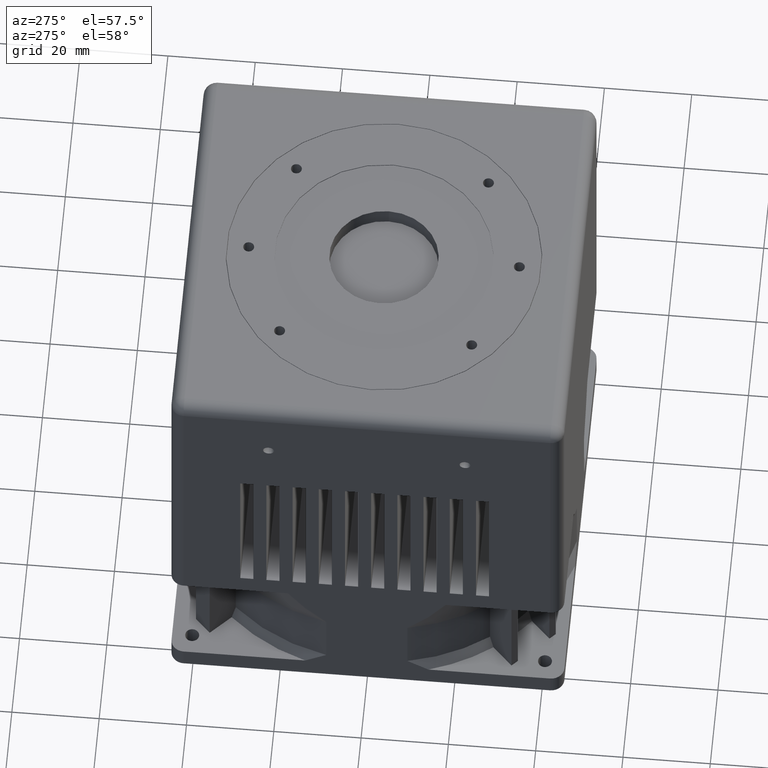
[diagram: clean part render]
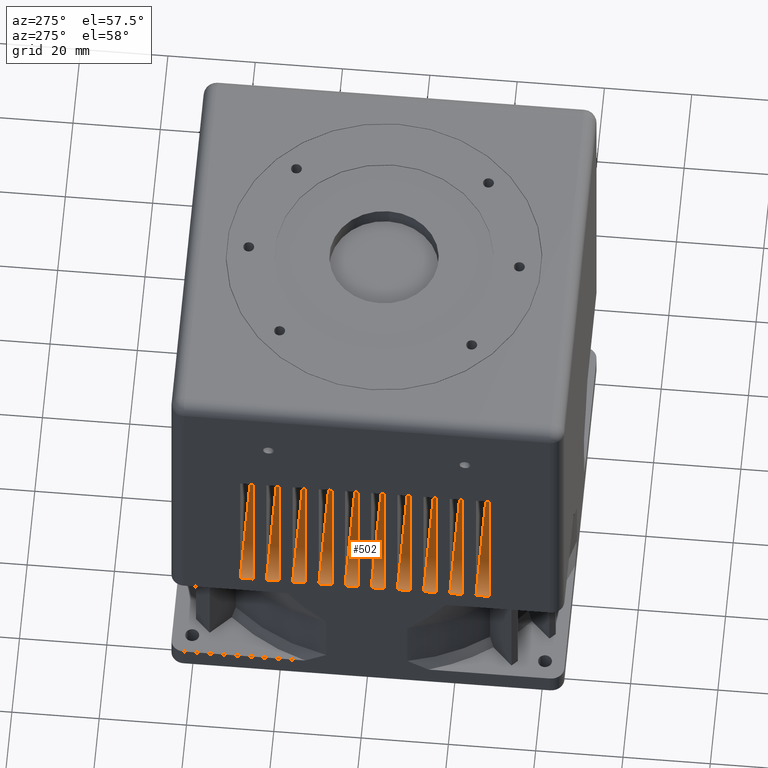
[diagram: same view with one face highlighted and labeled with its STEP entity id]
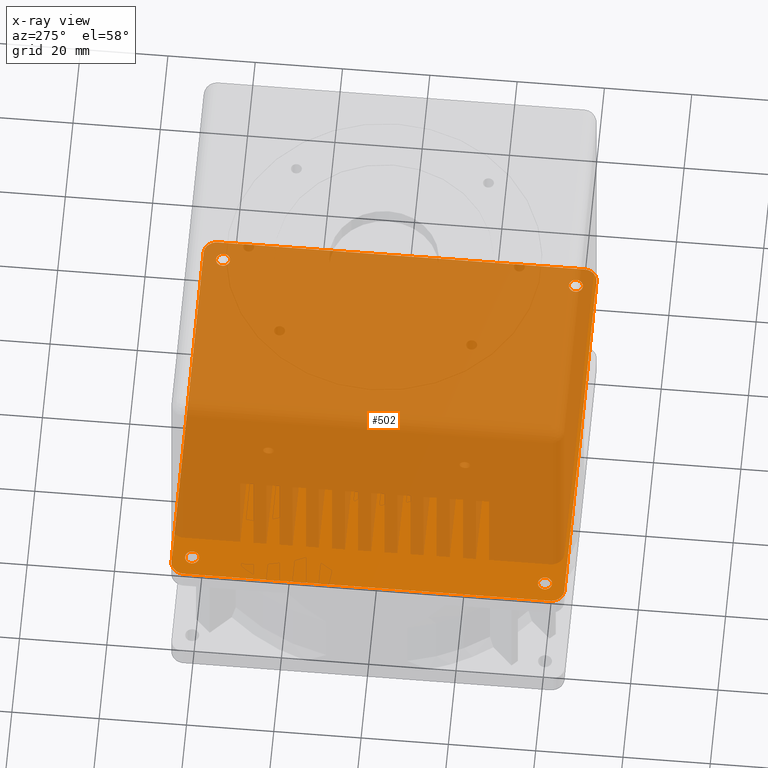
[diagram: x-ray of the same camera — body ghosted, the highlighted face saturated]
A machine part, auxiliary view. The second image highlights one B-rep face of the part: STEP entity #502.
The next image is the same camera in x-ray: the body ghosted, the highlighted face saturated — about 84% of this face is hidden behind the body in this view.
In plain terms, the highlighted planar face has unit normal (0, -0, 1).
Its self-contained STEP definition (entity closure, byte-faithful):
#18 = EDGE_CURVE ( 'NONE', #6832, #4979, #5490, .T. ) ;
#70 = VERTEX_POINT ( 'NONE', #5716 ) ;
#114 = CARTESIAN_POINT ( 'NONE',  ( 44.99999999999999289, -41.99999999999998579, 0.000000000000000000 ) ) ;
#277 = CIRCLE ( 'NONE', #3942, 1.600000000003196199 ) ;
#295 = CIRCLE ( 'NONE', #4749, 1.600000000001190692 ) ;
#493 = ORIENTED_EDGE ( 'NONE', *, *, #18, .T. ) ;
#502 = ADVANCED_FACE ( 'NONE', ( #6549, #4814, #4187, #6626, #3084 ), #7212, .T. ) ;
#556 = CIRCLE ( 'NONE', #4092, 3.000000000000002665 ) ;
#569 = AXIS2_PLACEMENT_3D ( 'NONE', #1505, #6275, #865 ) ;
#594 = VERTEX_POINT ( 'NONE', #6820 ) ;
#651 = DIRECTION ( 'NONE',  ( 0.000000000000000000, 0.000000000000000000, -1.000000000000000000 ) ) ;
#655 = DIRECTION ( 'NONE',  ( 0.000000000000000000, 0.000000000000000000, -1.000000000000000000 ) ) ;
#728 = CARTESIAN_POINT ( 'NONE',  ( 44.99999999999999289, -41.99999999999998579, 0.000000000000000000 ) ) ;
#731 = AXIS2_PLACEMENT_3D ( 'NONE', #3030, #6533, #5335 ) ;
#741 = EDGE_CURVE ( 'NONE', #1450, #4573, #556, .T. ) ;
#814 = AXIS2_PLACEMENT_3D ( 'NONE', #2531, #651, #4948 ) ;
#828 = CIRCLE ( 'NONE', #5272, 1.600000000002349543 ) ;
#865 = DIRECTION ( 'NONE',  ( 1.000000000000000000, 0.000000000000000000, 0.000000000000000000 ) ) ;
#1005 = EDGE_CURVE ( 'NONE', #6778, #5454, #1069, .T. ) ;
#1052 = DIRECTION ( 'NONE',  ( -1.000000000000000000, -0.000000000000000000, -0.000000000000000000 ) ) ;
#1069 = CIRCLE ( 'NONE', #3840, 1.600000000002349543 ) ;
#1119 = EDGE_LOOP ( 'NONE', ( #7586, #5154, #4718, #5877, #7501, #7543, #7462, #3427 ) ) ;
#1374 = CIRCLE ( 'NONE', #731, 1.599999999999997202 ) ;
#1424 = CARTESIAN_POINT ( 'NONE',  ( -42.01564467780268330, 40.41564467780261083, 0.000000000000000000 ) ) ;
#1449 = EDGE_CURVE ( 'NONE', #6081, #6358, #4629, .T. ) ;
#1450 = VERTEX_POINT ( 'NONE', #6830 ) ;
#1475 = DIRECTION ( 'NONE',  ( 0.000000000000000000, 0.000000000000000000, -1.000000000000000000 ) ) ;
#1505 = CARTESIAN_POINT ( 'NONE',  ( 41.99999999999998579, -41.99999999999998579, 0.000000000000000000 ) ) ;
#1526 = CARTESIAN_POINT ( 'NONE',  ( 38.81564467780034988, 40.41564467780033709, 0.000000000000000000 ) ) ;
#1593 = VECTOR ( 'NONE', #1862, 1000.000000000000000 ) ;
#1613 = CARTESIAN_POINT ( 'NONE',  ( 44.99999999999999289, 41.99999999999995737, 0.000000000000000000 ) ) ;
#1642 = VERTEX_POINT ( 'NONE', #6469 ) ;
#1661 = EDGE_CURVE ( 'NONE', #6802, #1642, #3957, .T. ) ;
#1686 = AXIS2_PLACEMENT_3D ( 'NONE', #6798, #5018, #6238 ) ;
#1688 = ORIENTED_EDGE ( 'NONE', *, *, #7843, .T. ) ;
#1718 = DIRECTION ( 'NONE',  ( 0.000000000000000000, 0.000000000000000000, -1.000000000000000000 ) ) ;
#1862 = DIRECTION ( 'NONE',  ( -0.000000000000000000, -1.000000000000000000, -0.000000000000000000 ) ) ;
#1895 = DIRECTION ( 'NONE',  ( 0.000000000000000000, 1.000000000000000000, 0.000000000000000000 ) ) ;
#2061 = CARTESIAN_POINT ( 'NONE',  ( 38.81564467779686822, -40.41564467780034420, 0.000000000000000000 ) ) ;
#2082 = CARTESIAN_POINT ( 'NONE',  ( 42.01564467779925138, -40.41564467780034420, 0.000000000000000000 ) ) ;
#2143 = EDGE_CURVE ( 'NONE', #4979, #6832, #295, .T. ) ;
#2170 = EDGE_CURVE ( 'NONE', #2179, #6802, #5508, .T. ) ;
#2179 = VERTEX_POINT ( 'NONE', #7803 ) ;
#2291 = EDGE_LOOP ( 'NONE', ( #5260, #7685 ) ) ;
#2321 = DIRECTION ( 'NONE',  ( -1.000000000000000000, 0.000000000000000000, 0.000000000000000000 ) ) ;
#2337 = VECTOR ( 'NONE', #1895, 1000.000000000000000 ) ;
#2531 = CARTESIAN_POINT ( 'NONE',  ( -41.99999999999997868, -41.99999999999997158, 0.000000000000000000 ) ) ;
#2558 = EDGE_LOOP ( 'NONE', ( #1688, #3783 ) ) ;
#2631 = DIRECTION ( 'NONE',  ( -1.000000000000000000, 0.000000000000000000, 0.000000000000000000 ) ) ;
#2636 = VECTOR ( 'NONE', #1052, 1000.000000000000000 ) ;
#2708 = ORIENTED_EDGE ( 'NONE', *, *, #6593, .T. ) ;
#2792 = DIRECTION ( 'NONE',  ( 0.000000000000000000, 0.000000000000000000, -1.000000000000000000 ) ) ;
#2889 = DIRECTION ( 'NONE',  ( -1.000000000000000000, 0.000000000000000000, 0.000000000000000000 ) ) ;
#2987 = EDGE_CURVE ( 'NONE', #594, #2179, #3343, .T. ) ;
#2999 = DIRECTION ( 'NONE',  ( -1.000000000000000000, 0.000000000000000000, 0.000000000000000000 ) ) ;
#3030 = CARTESIAN_POINT ( 'NONE',  ( 40.41564467780034420, 40.41564467780033709, 0.000000000000000000 ) ) ;
#3084 = FACE_BOUND ( 'NONE', #7463, .T. ) ;
#3120 = DIRECTION ( 'NONE',  ( 0.000000000000000000, 0.000000000000000000, -1.000000000000000000 ) ) ;
#3198 = CARTESIAN_POINT ( 'NONE',  ( 42.01564467780033851, 40.41564467780033709, 0.000000000000000000 ) ) ;
#3215 = CARTESIAN_POINT ( 'NONE',  ( -40.41564467780032999, 40.41564467780261083, 0.000000000000000000 ) ) ;
#3343 = CIRCLE ( 'NONE', #814, 3.000000000000002665 ) ;
#3359 = AXIS2_PLACEMENT_3D ( 'NONE', #4079, #4657, #4820 ) ;
#3427 = ORIENTED_EDGE ( 'NONE', *, *, #4784, .F. ) ;
#3486 = EDGE_LOOP ( 'NONE', ( #2708, #3851 ) ) ;
#3597 = CARTESIAN_POINT ( 'NONE',  ( 41.99999999999998579, -41.99999999999998579, 0.000000000000000000 ) ) ;
#3783 = ORIENTED_EDGE ( 'NONE', *, *, #6609, .T. ) ;
#3840 = AXIS2_PLACEMENT_3D ( 'NONE', #3215, #1475, #2631 ) ;
#3851 = ORIENTED_EDGE ( 'NONE', *, *, #4710, .T. ) ;
#3942 = AXIS2_PLACEMENT_3D ( 'NONE', #6334, #3120, #5552 ) ;
#3957 = CIRCLE ( 'NONE', #6897, 2.999999999999995559 ) ;
#4056 = CARTESIAN_POINT ( 'NONE',  ( -41.99999999999997868, -44.99999999999998579, 0.000000000000000000 ) ) ;
#4079 = CARTESIAN_POINT ( 'NONE',  ( -40.41564467780261083, -40.41564467779805625, 0.000000000000000000 ) ) ;
#4092 = AXIS2_PLACEMENT_3D ( 'NONE', #5818, #2792, #6604 ) ;
#4172 = CARTESIAN_POINT ( 'NONE',  ( -41.99999999999998579, 44.99999999999998579, 0.000000000000000000 ) ) ;
#4187 = FACE_OUTER_BOUND ( 'NONE', #1119, .T. ) ;
#4215 = AXIS2_PLACEMENT_3D ( 'NONE', #3597, #7175, #7250 ) ;
#4414 = VECTOR ( 'NONE', #5303, 1000.000000000000000 ) ;
#4573 = VERTEX_POINT ( 'NONE', #1613 ) ;
#4629 = CIRCLE ( 'NONE', #569, 2.999999999999995559 ) ;
#4657 = DIRECTION ( 'NONE',  ( 0.000000000000000000, 0.000000000000000000, -1.000000000000000000 ) ) ;
#4706 = DIRECTION ( 'NONE',  ( 0.000000000000000000, 0.000000000000000000, -1.000000000000000000 ) ) ;
#4710 = EDGE_CURVE ( 'NONE', #7294, #5744, #1374, .T. ) ;
#4718 = ORIENTED_EDGE ( 'NONE', *, *, #741, .F. ) ;
#4733 = CARTESIAN_POINT ( 'NONE',  ( -41.99999999999998579, 41.99999999999998579, 0.000000000000000000 ) ) ;
#4749 = AXIS2_PLACEMENT_3D ( 'NONE', #4880, #655, #2999 ) ;
#4775 = EDGE_CURVE ( 'NONE', #1642, #1450, #4798, .T. ) ;
#4784 = EDGE_CURVE ( 'NONE', #6358, #594, #6610, .T. ) ;
#4798 = LINE ( 'NONE', #4172, #4414 ) ;
#4811 = LINE ( 'NONE', #114, #1593 ) ;
#4814 = FACE_BOUND ( 'NONE', #3486, .T. ) ;
#4820 = DIRECTION ( 'NONE',  ( -1.000000000000000000, 0.000000000000000000, 0.000000000000000000 ) ) ;
#4880 = CARTESIAN_POINT ( 'NONE',  ( 40.41564467779806336, -40.41564467780034420, 0.000000000000000000 ) ) ;
#4948 = DIRECTION ( 'NONE',  ( -1.000000000000000000, 0.000000000000000000, 0.000000000000000000 ) ) ;
#4979 = VERTEX_POINT ( 'NONE', #2082 ) ;
#5018 = DIRECTION ( 'NONE',  ( 0.000000000000000000, 0.000000000000000000, -1.000000000000000000 ) ) ;
#5154 = ORIENTED_EDGE ( 'NONE', *, *, #7010, .F. ) ;
#5242 = CARTESIAN_POINT ( 'NONE',  ( -40.41564467780032999, 40.41564467780261083, 0.000000000000000000 ) ) ;
#5260 = ORIENTED_EDGE ( 'NONE', *, *, #6729, .T. ) ;
#5272 = AXIS2_PLACEMENT_3D ( 'NONE', #5242, #4706, #2321 ) ;
#5303 = DIRECTION ( 'NONE',  ( 1.000000000000000000, -8.260587980841942477E-17, 0.000000000000000000 ) ) ;
#5335 = DIRECTION ( 'NONE',  ( -1.000000000000000000, 0.000000000000000000, 0.000000000000000000 ) ) ;
#5399 = CARTESIAN_POINT ( 'NONE',  ( -38.81564467779798377, 40.41564467780261083, 0.000000000000000000 ) ) ;
#5417 = VERTEX_POINT ( 'NONE', #5834 ) ;
#5454 = VERTEX_POINT ( 'NONE', #5399 ) ;
#5463 = CARTESIAN_POINT ( 'NONE',  ( -44.99999999999998579, -41.99999999999997158, 0.000000000000000000 ) ) ;
#5490 = CIRCLE ( 'NONE', #1686, 1.600000000001190692 ) ;
#5508 = LINE ( 'NONE', #5463, #2337 ) ;
#5552 = DIRECTION ( 'NONE',  ( -1.000000000000000000, 0.000000000000000000, 0.000000000000000000 ) ) ;
#5716 = CARTESIAN_POINT ( 'NONE',  ( -38.81564467779941907, -40.41564467779805625, 0.000000000000000000 ) ) ;
#5744 = VERTEX_POINT ( 'NONE', #3198 ) ;
#5818 = CARTESIAN_POINT ( 'NONE',  ( 41.99999999999998579, 41.99999999999997158, 0.000000000000000000 ) ) ;
#5834 = CARTESIAN_POINT ( 'NONE',  ( -42.01564467780580969, -40.41564467779805625, 0.000000000000000000 ) ) ;
#5877 = ORIENTED_EDGE ( 'NONE', *, *, #4775, .F. ) ;
#6081 = VERTEX_POINT ( 'NONE', #728 ) ;
#6238 = DIRECTION ( 'NONE',  ( -1.000000000000000000, 0.000000000000000000, 0.000000000000000000 ) ) ;
#6275 = DIRECTION ( 'NONE',  ( -0.000000000000000000, 0.000000000000000000, -1.000000000000000000 ) ) ;
#6287 = CIRCLE ( 'NONE', #7545, 1.599999999999997202 ) ;
#6334 = CARTESIAN_POINT ( 'NONE',  ( -40.41564467780261083, -40.41564467779805625, 0.000000000000000000 ) ) ;
#6344 = CARTESIAN_POINT ( 'NONE',  ( -44.99999999999998579, 41.99999999999998579, 0.000000000000000000 ) ) ;
#6358 = VERTEX_POINT ( 'NONE', #7308 ) ;
#6469 = CARTESIAN_POINT ( 'NONE',  ( -41.99999999999998579, 44.99999999999998579, 0.000000000000000000 ) ) ;
#6533 = DIRECTION ( 'NONE',  ( 0.000000000000000000, 0.000000000000000000, -1.000000000000000000 ) ) ;
#6549 = FACE_BOUND ( 'NONE', #2558, .T. ) ;
#6592 = CARTESIAN_POINT ( 'NONE',  ( 40.41564467780034420, 40.41564467780033709, 0.000000000000000000 ) ) ;
#6593 = EDGE_CURVE ( 'NONE', #5744, #7294, #6287, .T. ) ;
#6604 = DIRECTION ( 'NONE',  ( -1.000000000000000000, 0.000000000000000000, 0.000000000000000000 ) ) ;
#6609 = EDGE_CURVE ( 'NONE', #5417, #70, #7416, .T. ) ;
#6610 = LINE ( 'NONE', #4056, #2636 ) ;
#6626 = FACE_BOUND ( 'NONE', #2291, .T. ) ;
#6729 = EDGE_CURVE ( 'NONE', #5454, #6778, #828, .T. ) ;
#6778 = VERTEX_POINT ( 'NONE', #1424 ) ;
#6798 = CARTESIAN_POINT ( 'NONE',  ( 40.41564467779806336, -40.41564467780034420, 0.000000000000000000 ) ) ;
#6802 = VERTEX_POINT ( 'NONE', #6344 ) ;
#6820 = CARTESIAN_POINT ( 'NONE',  ( -41.99999999999997868, -44.99999999999998579, 0.000000000000000000 ) ) ;
#6830 = CARTESIAN_POINT ( 'NONE',  ( 41.99999999999996447, 44.99999999999997868, 0.000000000000000000 ) ) ;
#6832 = VERTEX_POINT ( 'NONE', #2061 ) ;
#6897 = AXIS2_PLACEMENT_3D ( 'NONE', #4733, #7059, #2889 ) ;
#7010 = EDGE_CURVE ( 'NONE', #4573, #6081, #4811, .T. ) ;
#7059 = DIRECTION ( 'NONE',  ( 0.000000000000000000, 0.000000000000000000, -1.000000000000000000 ) ) ;
#7175 = DIRECTION ( 'NONE',  ( 0.000000000000000000, -0.000000000000000000, 1.000000000000000000 ) ) ;
#7212 = PLANE ( 'NONE',  #4215 ) ;
#7239 = ORIENTED_EDGE ( 'NONE', *, *, #2143, .T. ) ;
#7250 = DIRECTION ( 'NONE',  ( 1.000000000000000000, 0.000000000000000000, -0.000000000000000000 ) ) ;
#7294 = VERTEX_POINT ( 'NONE', #1526 ) ;
#7308 = CARTESIAN_POINT ( 'NONE',  ( 41.99999999999998579, -44.99999999999998579, 0.000000000000000000 ) ) ;
#7416 = CIRCLE ( 'NONE', #3359, 1.600000000003196199 ) ;
#7462 = ORIENTED_EDGE ( 'NONE', *, *, #2987, .F. ) ;
#7463 = EDGE_LOOP ( 'NONE', ( #7239, #493 ) ) ;
#7501 = ORIENTED_EDGE ( 'NONE', *, *, #1661, .F. ) ;
#7543 = ORIENTED_EDGE ( 'NONE', *, *, #2170, .F. ) ;
#7545 = AXIS2_PLACEMENT_3D ( 'NONE', #6592, #1718, #7776 ) ;
#7586 = ORIENTED_EDGE ( 'NONE', *, *, #1449, .F. ) ;
#7685 = ORIENTED_EDGE ( 'NONE', *, *, #1005, .T. ) ;
#7776 = DIRECTION ( 'NONE',  ( -1.000000000000000000, 0.000000000000000000, 0.000000000000000000 ) ) ;
#7803 = CARTESIAN_POINT ( 'NONE',  ( -44.99999999999998579, -41.99999999999997158, 0.000000000000000000 ) ) ;
#7843 = EDGE_CURVE ( 'NONE', #70, #5417, #277, .T. ) ;